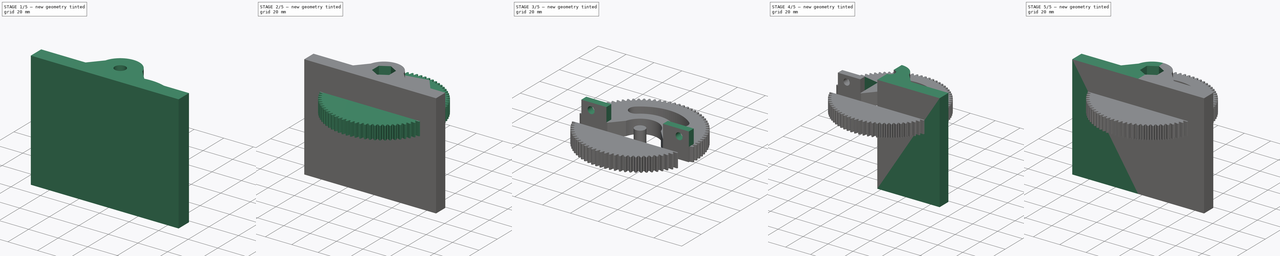
[diagram: build sequence overview — one tinted view per stage of 5, left to right]
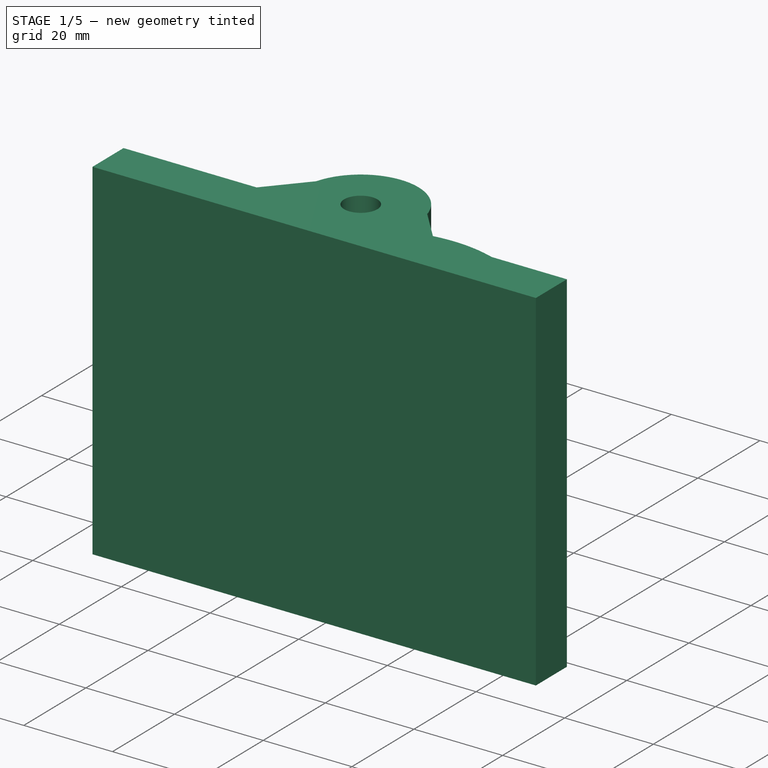
[diagram: stage 1 of 5 — iso view after this stage's code; geometry added in this stage tinted green]
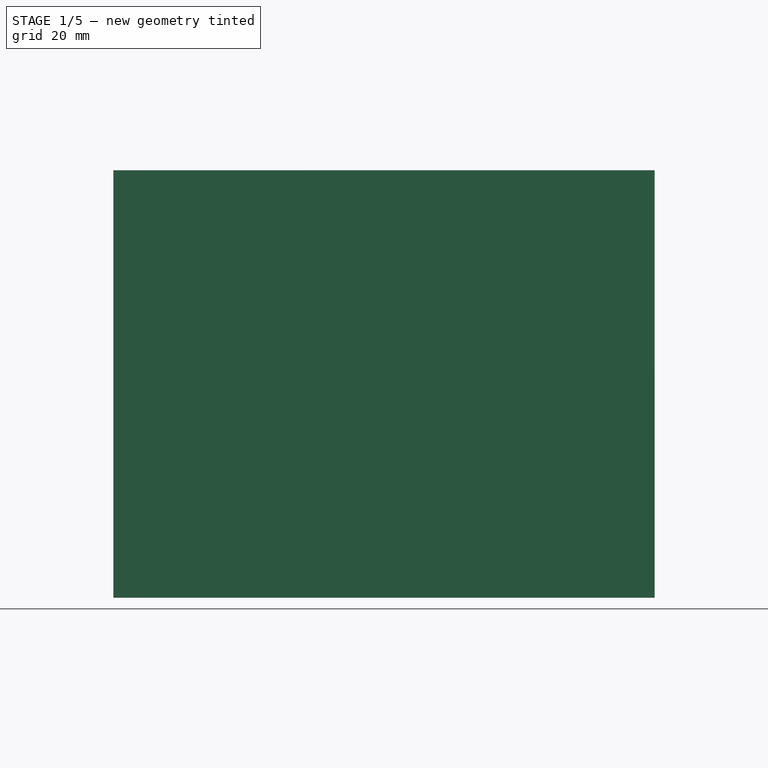
[diagram: stage 1 of 5 — front view after this stage's code; geometry added in this stage tinted green]
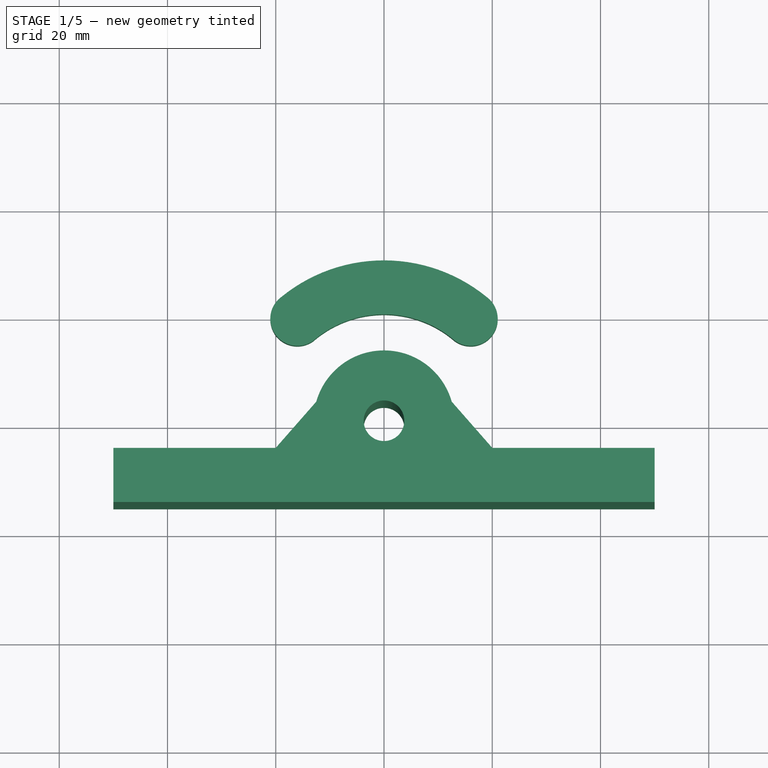
[diagram: stage 1 of 5 — top view after this stage's code; geometry added in this stage tinted green]
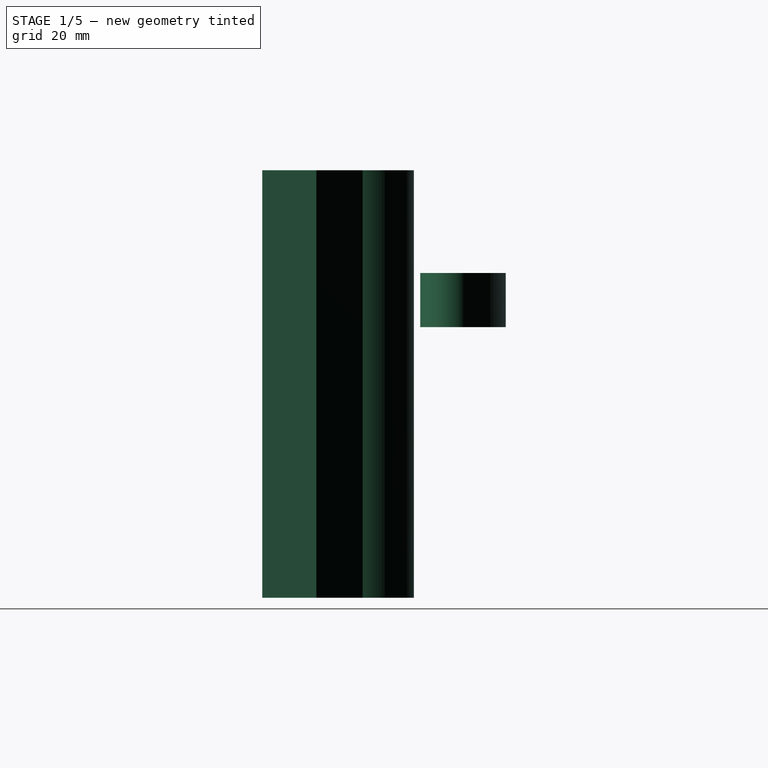
[diagram: stage 1 of 5 — right view after this stage's code; geometry added in this stage tinted green]
FCSTD DOCUMENT  (FreeCAD 0.19R24291 (Git))
Label: new_vzpera2
License: All rights reserved
LicenseURL: http://en.wikipedia.org/wiki/All_rights_reserved
objects: Sketcher::SketchObject×12, Part::Extrusion×7, Part::Mirroring×4, PartDesign::Pocket×4, App::Part×3, PartDesign::ShapeBinder×3, Part::Cut×3, Part::MultiFuse×2, PartDesign::Body×2, PartDesign::FeatureBase×2, Part::FeaturePython×1
note: 44 computed .brp shape members not serialized (recipe doc carries the construction recipe); baked Part::Feature solids carry a one-line shape summary decoded from their .brp

FEATURE [App::Part] Part002  label="Deklinacni_ozubi"
  Group = -> [involutegear]
  Origin = -> Origin004
FEATURE [Sketcher::SketchObject] Sketch004  label="Zakladni_tvar001"
  FullyConstrained = true
  MapMode = 5
  Support = -> [XY_Plane005]
  sketch-geometry (9):
    g0: Circle CenterX=0 CenterY=0 CenterZ=0 NormalX=0 NormalY=0 NormalZ=1 AngleXU=0 Radius=3.75
    g1: LineSegment StartX=-50 StartY=-15.0095 StartZ=0 EndX=0 EndY=-15.0095 EndZ=0
    g2: LineSegment StartX=-50 StartY=-5.00947 StartZ=0 EndX=-50 EndY=-15.0095 EndZ=0
    g3: LineSegment StartX=-12.51 StartY=3.53552 StartZ=0 EndX=-20 EndY=-5.00553 EndZ=0
    g4: LineSegment StartX=-20 StartY=-5.00553 StartZ=0 EndX=-50 EndY=-5.00947 EndZ=0
    g5: ArcOfCircle CenterX=0 CenterY=0 CenterZ=0 NormalX=0 NormalY=0 NormalZ=1 AngleXU=0 Radius=13 StartAngle=1.5708 EndAngle=2.86616
    g6: ArcOfCircle CenterX=0 CenterY=0 CenterZ=0 NormalX=0 NormalY=0 NormalZ=1 AngleXU=0 Radius=3.75 StartAngle=1.5708 EndAngle=4.71239
    g7: LineSegment StartX=8e-16 StartY=13 StartZ=0 EndX=8e-16 EndY=3.75 EndZ=0
    g8: LineSegment StartX=0 StartY=-3.75 StartZ=0 EndX=0 EndY=-15.0095 EndZ=0
  constraints (26):
    c: Coincident(g0,g-1)
    c: Radius(g0) = 3.75
    c: Coincident(g4,g2)
    c: Coincident(g2,g1)
    c: Horizontal(g1)
    c: Vertical(g2)
    c: Distance(g1) = 50
    c: Distance(g2) = 10
    c: Coincident(g4,g3)
    c: Coincident(g5,g0)
    c: Coincident(g5,g3)
    c: Coincident(g6,g5)
    c: PointOnObject(g6,g0)
    c: Angle(g6) = 3.14159
    c: PointOnObject(g6,g-2)
    c: Coincident(g7,g5)
    c: Coincident(g7,g6)
    c: Vertical(g7)
    c: Coincident(g8,g1)
    c: Vertical(g8)
    c: Coincident(g8,g6)
    c: Distance(g3,g3) = 11.36
    c: Distance(g1,g3) = 22.37
    c: DistanceX(g2,g3) = 30
    c: Radius(g5) = 13
    c: DistanceX(g3) = -12.51
FEATURE [Sketcher::SketchObject] Sketch005  label="DiraMatice001"
  FullyConstrained = true
  MapMode = 5
  Support = -> [XY_Plane006]
  sketch-geometry (7):
    g0: LineSegment StartX=0 StartY=-7.5 StartZ=0 EndX=6.49519 EndY=-3.75 EndZ=0
    g1: LineSegment StartX=6.49519 StartY=-3.75 StartZ=0 EndX=6.49519 EndY=3.75 EndZ=0
    g2: LineSegment StartX=6.49519 StartY=3.75 StartZ=0 EndX=-2.11111e-11 EndY=7.5 EndZ=0
    g3: LineSegment StartX=-2.11112e-11 StartY=7.5 StartZ=0 EndX=-6.49519 EndY=3.75 EndZ=0
    g4: LineSegment StartX=-6.49519 StartY=3.75 StartZ=0 EndX=-6.49519 EndY=-3.75 EndZ=0
    g5: LineSegment StartX=-6.49519 StartY=-3.75 StartZ=0 EndX=0 EndY=-7.5 EndZ=0
    g6: Circle CenterX=0 CenterY=0 CenterZ=0 NormalX=0 NormalY=0 NormalZ=1 AngleXU=0 Radius=7.5
  constraints (16):
    c: Coincident(g0,g1)
    c: Coincident(g1,g2)
    c: Coincident(g2,g3)
    c: Coincident(g3,g4)
    c: Coincident(g4,g5)
    c: Coincident(g5,g0)
    c: Equal(g0, g1-g5) x5
    c: PointOnObject(g0,g6)
    c: PointOnObject(g1,g6)
    c: PointOnObject(g2,g6)
    c: PointOnObject(g3,g6)
    c: PointOnObject(g4,g6)
    c: PointOnObject(g5,g6)
    c: Coincident(g6,g-1)
    c: PointOnObject(g5,g-2)
    c: Radius(g6) = 7.5
FEATURE [Part::Mirroring] Part__Mirroring002  label="Zakladni_tvar (Mirror #1)001"
  Base = (-25,-1.00474,0)
  Normal = (0,0,1)
  Source = -> Sketch004
FEATURE [Part::Extrusion] Extrude001  label="Extrude_pulky001"
  Base = -> Part__Mirroring002
  Dir = (0,0,1)
  DirMode = 2
  FaceMakerClass = Part::FaceMakerBullseye
  LengthFwd = 79
  LengthRev = 0
  Solid = true
  Symmetric = false
FEATURE [Part::Mirroring] Part__Mirroring003  label="Extrude (Mirror #2)001"
  Base = (0,0,0)
  Normal = (1,0,0)
  Source = -> Extrude001
FEATURE [Part::MultiFuse] Fusion001
  Shapes = -> [Part__Mirroring003,Extrude001]
FEATURE [Sketcher::SketchObject] Sketch011
  FullyConstrained = false
  MapMode = 5
  Placement = pos=(0,0,60) rot=(0,0,1;0rad)
  Support = -> [CopyCut]
  sketch-geometry (5):
    g0: ArcOfCircle CenterX=1.6e-15 CenterY=0 CenterZ=0 NormalX=0 NormalY=0 NormalZ=1 AngleXU=0 Radius=29.9718 StartAngle=0.887483 EndAngle=1.5708
    g1: ArcOfCircle CenterX=1.6e-15 CenterY=0 CenterZ=0 NormalX=0 NormalY=0 NormalZ=1 AngleXU=0 Radius=29.9718 StartAngle=1.5708 EndAngle=2.25411
    g2: ArcOfCircle CenterX=1.6e-15 CenterY=0 CenterZ=0 NormalX=0 NormalY=0 NormalZ=1 AngleXU=0 Radius=20 StartAngle=0.856833 EndAngle=2.28476
    g3: ArcOfCircle CenterX=16.0099 CenterY=19.1791 CenterZ=0 NormalX=0 NormalY=0 NormalZ=1 AngleXU=0 Radius=5 StartAngle=4.09041 EndAngle=7.23199
    g4: ArcOfCircle CenterX=-16.0099 CenterY=19.1791 CenterZ=0 NormalX=0 NormalY=0 NormalZ=1 AngleXU=0 Radius=5 StartAngle=2.19278 EndAngle=5.33437
  constraints (13):
    c: Coincident(g1,g0)
    c: PointOnObject(g0,g-2)
    c: Coincident(g2,g0)
    c: Symmetric(g2,g2,g-2)
    c: Symmetric(g0,g1,g-2)
    c: Distance(g2,g0) = 10
    c: Coincident(g1,g0)
    c: Distance(g2,g0) = 20
    c: Coincident(g0,g-1)
    c: Radius(g3) = 5
    c: Coincident(g3,g2)
    c: Coincident(g3,g0)
    c: Radius(g4) = 5
FEATURE [Part::Extrusion] Extrude007
  Base = -> Sketch011
  Dir = (0,0,1)
  DirMode = 2
  FaceMakerClass = Part::FaceMakerBullseye
  LengthFwd = -10
  LengthRev = 0
  Solid = true
  Symmetric = false
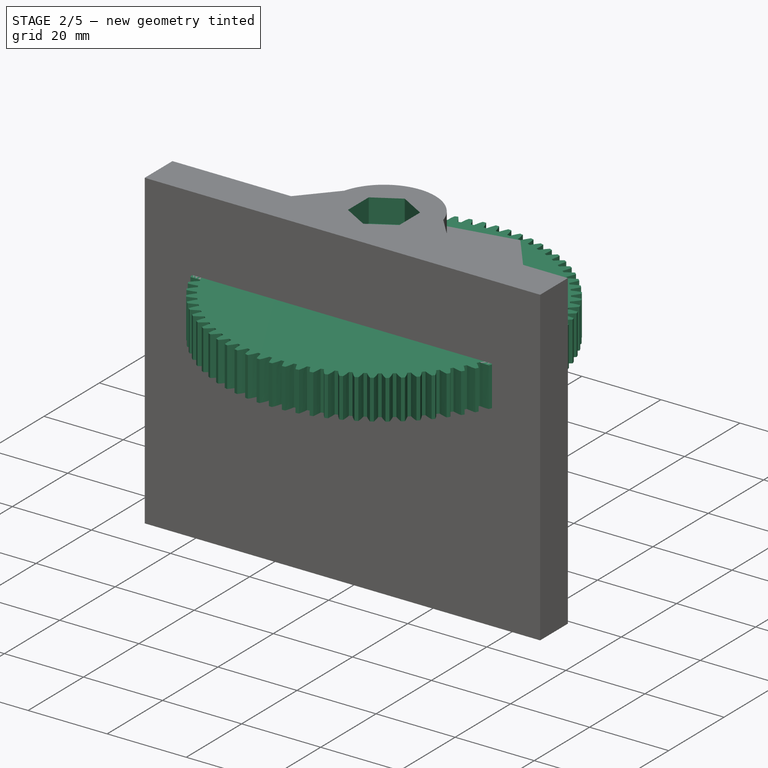
[diagram: stage 2 of 5 — iso view after this stage's code; geometry added in this stage tinted green]
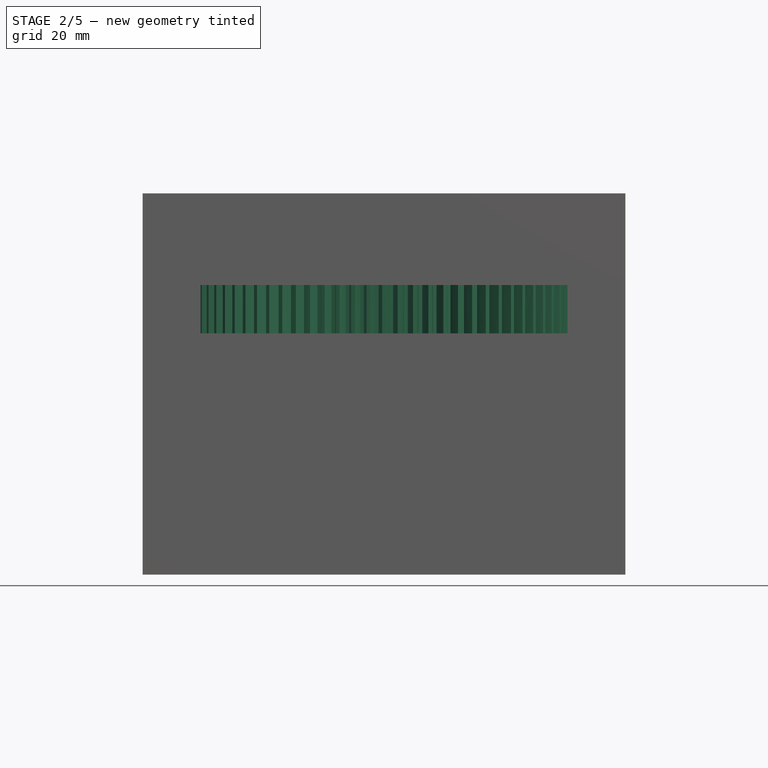
[diagram: stage 2 of 5 — front view after this stage's code; geometry added in this stage tinted green]
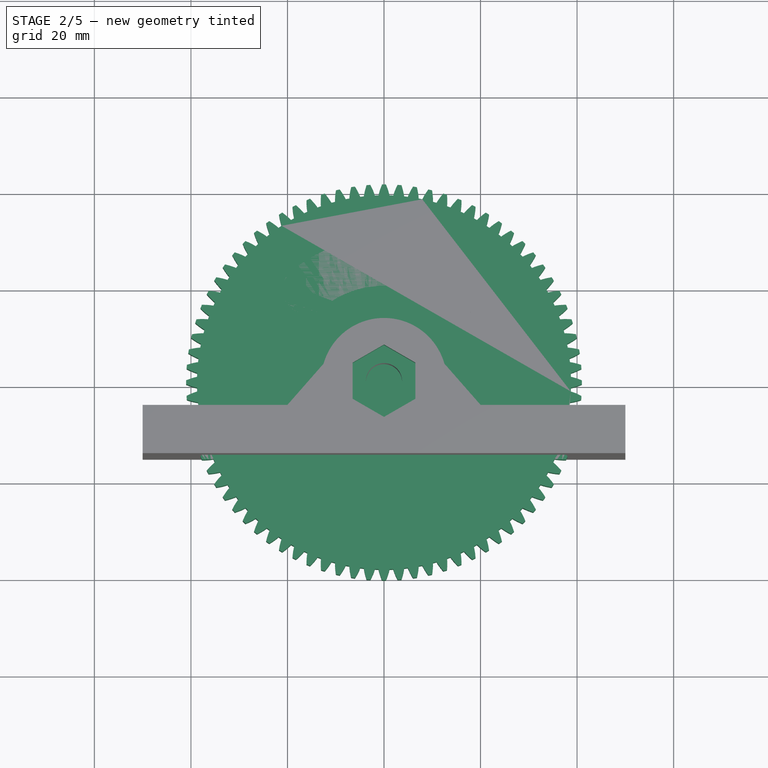
[diagram: stage 2 of 5 — top view after this stage's code; geometry added in this stage tinted green]
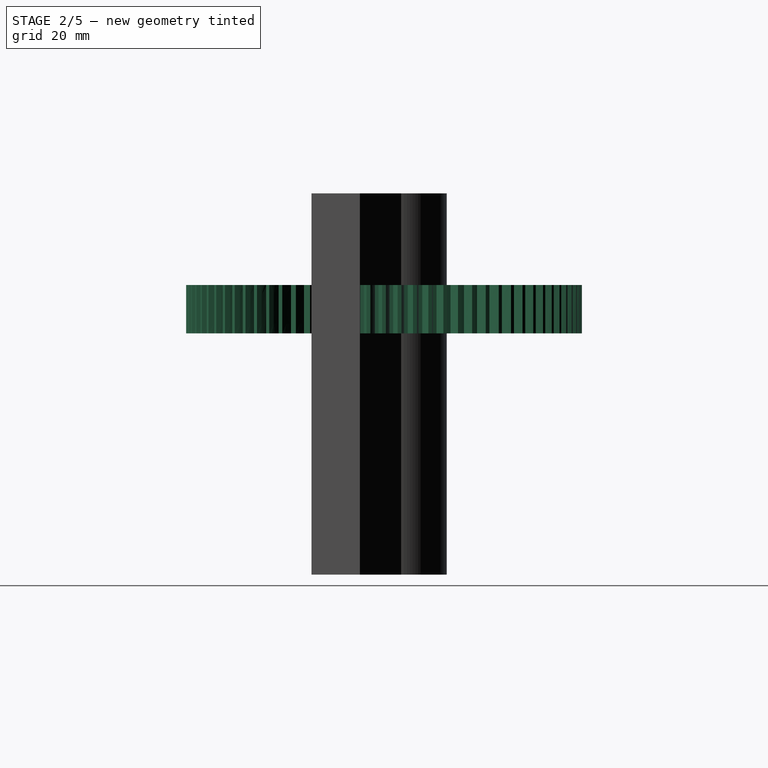
[diagram: stage 2 of 5 — right view after this stage's code; geometry added in this stage tinted green]
FEATURE [Part::FeaturePython] involutegear  # WARN: FeaturePython — macro-defined, semantics opaque (R4)
  AttacherType = Attacher::AttachEngine3D
  Placement = pos=(0,0,50) rot=(0,0,1;0rad)
  backlash = 0
  beta = 0
  clearance = 0.25
  da = 82
  df = 77.5
  double_helix = false
  dw = 80
  head = 0
  height = 10
  module = 1
  numpoints = 6
  pressure_angle = 20
  properties_from_tool = false
  reversed_backlash = false
  shift = 0
  simple = false
  teeth = 80
  transverse_pitch = 3.14159
  undercut = false
  version = 0.0.3
FEATURE [PartDesign::FeatureBase] BaseFeature001
  BaseFeature = -> Fusion001
FEATURE [PartDesign::Pocket] Pocket003
  BaseFeature = -> BaseFeature001
  Length = 6
  Length2 = 100
  Profile = -> Sketch005
  Reversed = true
  Type = 0
FEATURE [Sketcher::SketchObject] Sketch003
  FullyConstrained = true
  MapMode = 5
  Placement = pos=(0,0,79) rot=(0,0,1;0rad)
  Support = -> [Pocket003]
  sketch-geometry (7):
    g0: LineSegment StartX=0 StartY=-7.5 StartZ=0 EndX=6.49519 EndY=-3.75 EndZ=0
    g1: LineSegment StartX=6.49519 StartY=-3.75 StartZ=0 EndX=6.49519 EndY=3.75 EndZ=0
    g2: LineSegment StartX=6.49519 StartY=3.75 StartZ=0 EndX=-7.23697e-11 EndY=7.5 EndZ=0
    g3: LineSegment StartX=-7.23697e-11 StartY=7.5 StartZ=0 EndX=-6.49519 EndY=3.75 EndZ=0
    g4: LineSegment StartX=-6.49519 StartY=3.75 StartZ=0 EndX=-6.49519 EndY=-3.75 EndZ=0
    g5: LineSegment StartX=-6.49519 StartY=-3.75 StartZ=0 EndX=0 EndY=-7.5 EndZ=0
    g6: Circle CenterX=0 CenterY=0 CenterZ=0 NormalX=0 NormalY=0 NormalZ=1 AngleXU=0 Radius=7.5
  constraints (16):
    c: Coincident(g0,g1)
    c: Coincident(g1,g2)
    c: Coincident(g2,g3)
    c: Coincident(g3,g4)
    c: Coincident(g4,g5)
    c: Coincident(g5,g0)
    c: Equal(g0, g1-g5) x5
    c: PointOnObject(g0,g6)
    c: PointOnObject(g1,g6)
    c: PointOnObject(g2,g6)
    c: PointOnObject(g3,g6)
    c: PointOnObject(g4,g6)
    c: PointOnObject(g5,g6)
    c: Coincident(g6,g-1)
    c: PointOnObject(g5,g-2)
    c: Radius(g6) = 7.5
FEATURE [PartDesign::Pocket] Pocket002  label="refer_vzpera"
  BaseFeature = -> Pocket003
  Length = 6
  Length2 = 100
  Profile = -> Sketch003
  Type = 0
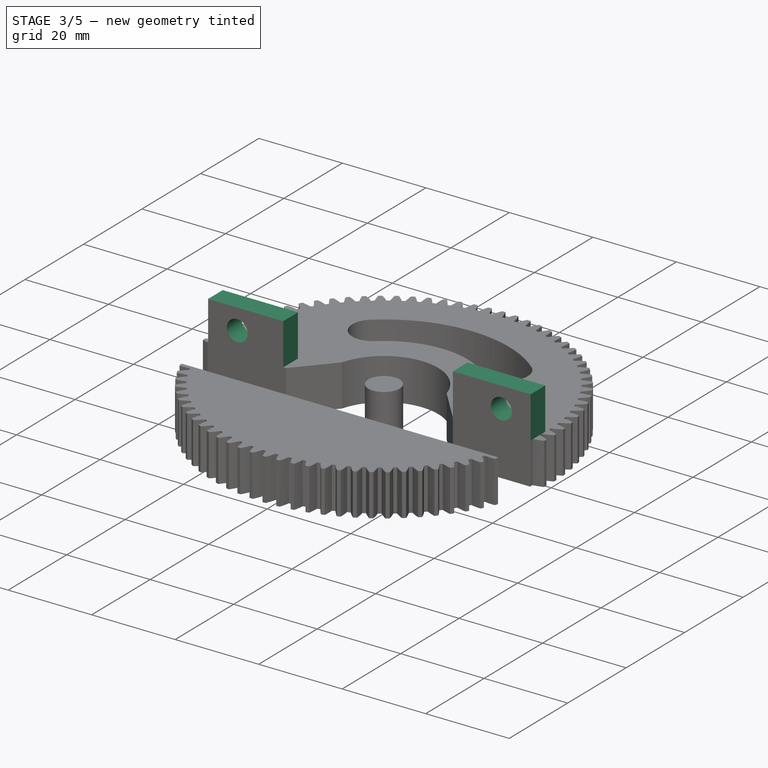
[diagram: stage 3 of 5 — iso view after this stage's code; geometry added in this stage tinted green]
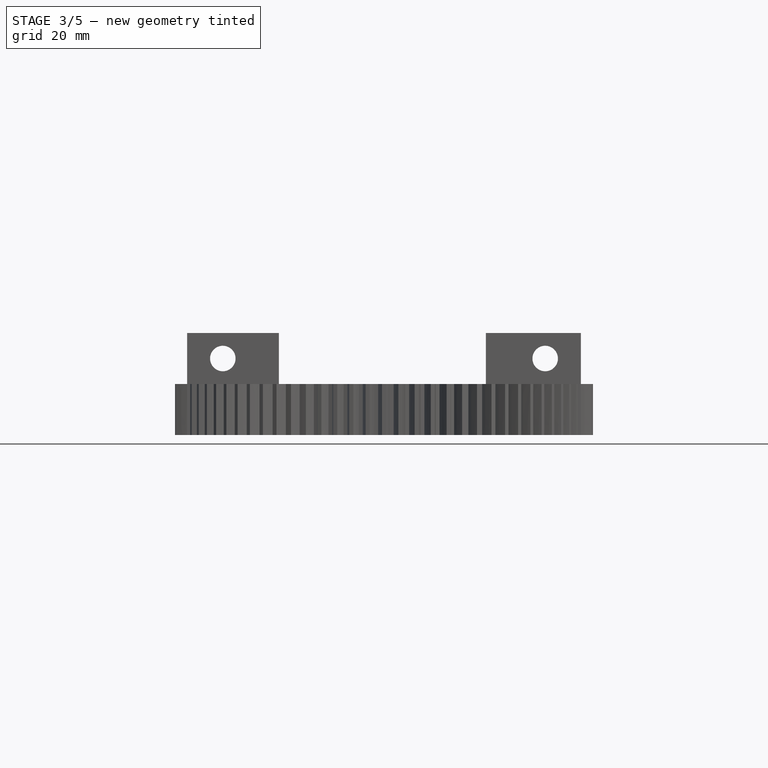
[diagram: stage 3 of 5 — front view after this stage's code; geometry added in this stage tinted green]
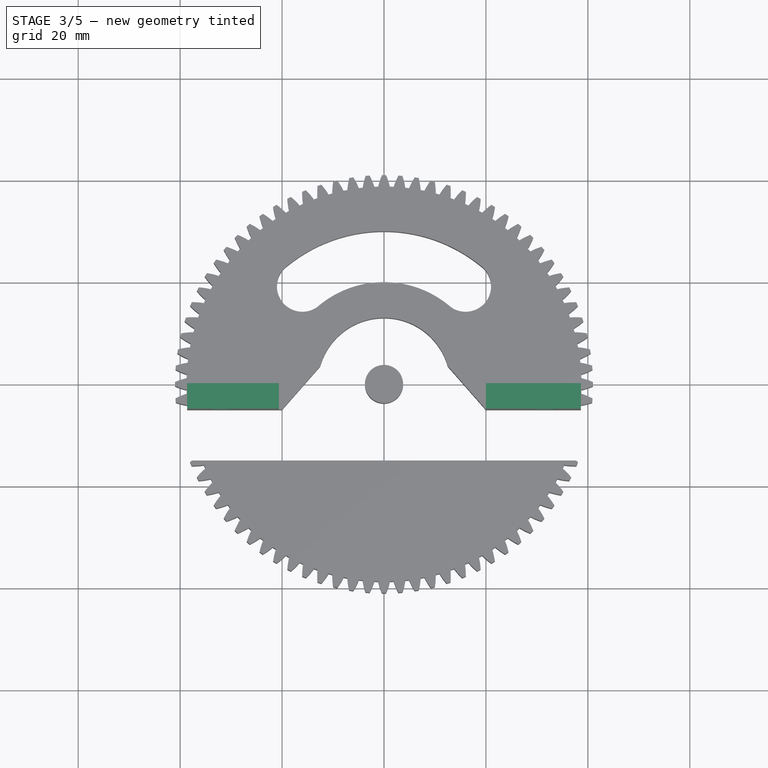
[diagram: stage 3 of 5 — top view after this stage's code; geometry added in this stage tinted green]
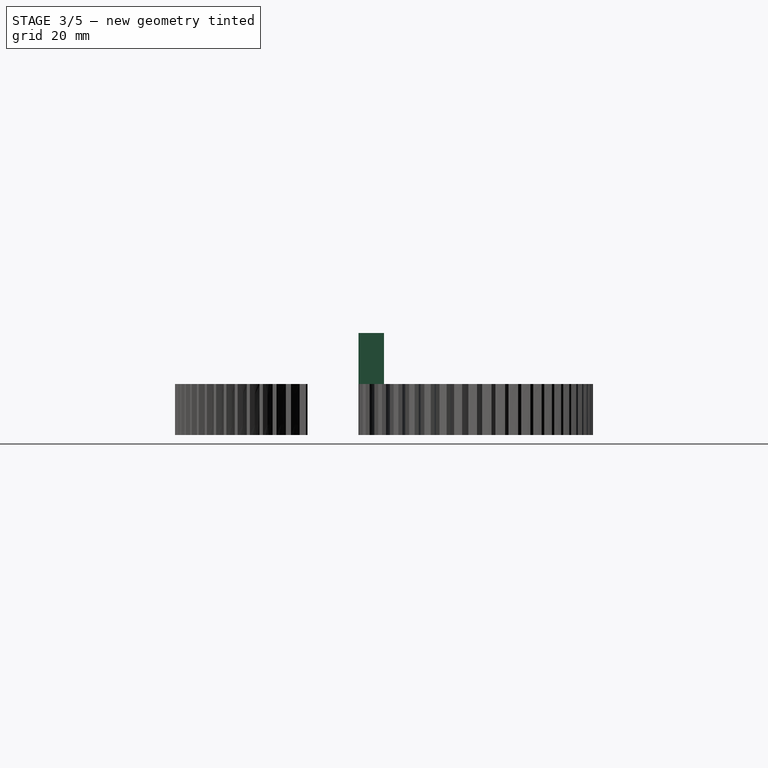
[diagram: stage 3 of 5 — right view after this stage's code; geometry added in this stage tinted green]
FEATURE [PartDesign::ShapeBinder] Copyinvolutegear
  Placement = pos=(0,0,60) rot=(0,0,1;0rad)
  TraceSupport = false
FEATURE [Sketcher::SketchObject] Sketch006
  FullyConstrained = true
  MapMode = 5
  Placement = pos=(0,0,60) rot=(0,0,1;0rad)
  Support = -> [Copyinvolutegear]
FEATURE [Part::Cut] Cut
  Base = -> Part002
  Tool = -> Pocket002
FEATURE [PartDesign::ShapeBinder] CopyCut
  TraceSupport = false
FEATURE [Sketcher::SketchObject] Sketch007
  ExternalGeometry = -> [CopyCut]
  FullyConstrained = false
  MapMode = 5
  Placement = pos=(0,0,60) rot=(0,0,1;0rad)
  Support = -> [CopyCut]
  sketch-geometry (8):
    g0: LineSegment StartX=-38.6256 StartY=-5.00798 StartZ=0 EndX=-20.6256 EndY=-5.00798 EndZ=0
    g1: LineSegment StartX=-20.6256 StartY=-5.00798 StartZ=0 EndX=-20.6256 EndY=0 EndZ=0
    g2: LineSegment StartX=-20.6256 StartY=0 StartZ=0 EndX=-38.6256 EndY=0 EndZ=0
    g3: LineSegment StartX=-38.6256 StartY=0 StartZ=0 EndX=-38.6256 EndY=-5.00798 EndZ=0
    g4: LineSegment StartX=20 StartY=-5.00553 StartZ=0 EndX=38.6256 EndY=-5.00553 EndZ=0
    g5: LineSegment StartX=38.6256 StartY=-5.00553 StartZ=0 EndX=38.6256 EndY=0 EndZ=0
    g6: LineSegment StartX=38.6256 StartY=0 StartZ=0 EndX=20 EndY=0 EndZ=0
    g7: LineSegment StartX=20 StartY=0 StartZ=0 EndX=20 EndY=-5.00553 EndZ=0
  constraints (11):
    c: Coincident(g4,g5)
    c: Coincident(g5,g6)
    c: Coincident(g6,g7)
    c: Coincident(g7,g4)
    c: Horizontal(g4)
    c: Horizontal(g6)
    c: Vertical(g5)
    c: Vertical(g7)
    c: Coincident(g4,g-4)
    c: PointOnObject(g5,g-1)
    c: Equal(g4,g-4)
FEATURE [PartDesign::Body] Body001
  BaseFeature = -> Fusion
  Group = -> [BaseFeature,Sketch001,Pocket,Sketch002,Pocket001,Copyinvolutegear,Sketch006,CopyCut,Sketch007]
  Origin = -> Origin003
  Tip = -> Pocket001
FEATURE [Part::Extrusion] Extrude002  label="Patna"
  Base = -> Sketch007
  Dir = (0,0,1)
  DirMode = 2
  FaceMakerClass = Part::FaceMakerBullseye
  LengthFwd = 10
  LengthRev = 0
  Solid = true
  Symmetric = false
FEATURE [Sketcher::SketchObject] Sketch010
  ExternalGeometry = -> [Extrude002]
  FullyConstrained = true
  MapMode = 5
  Placement = pos=(0,0,0) rot=(0,0.707107,0.707107;3.14159rad)
  Support = -> [Extrude002]
  sketch-geometry (2):
    g0: Circle CenterX=-31.6256 CenterY=65 CenterZ=0 NormalX=0 NormalY=0 NormalZ=1 AngleXU=0 Radius=2.5
    g1: Circle CenterX=31.6256 CenterY=65 CenterZ=0 NormalX=0 NormalY=0 NormalZ=1 AngleXU=0 Radius=2.5
  constraints (6):
    c: Radius(g0) = 2.5
    c: DistanceX(g-3,g0) = 7
    c: DistanceY(g0,g-3) = 5
    c: Radius(g1) = 2.5
    c: DistanceX(g1,g-4) = 7
    c: DistanceY(g1,g-4) = 5
FEATURE [Part::Extrusion] Extrude006
  Base = -> Sketch010
  Dir = (0,1,-2e-16)
  DirMode = 2
  FaceMakerClass = Part::FaceMakerBullseye
  LengthFwd = 10
  LengthRev = 0
  Reversed = true
  Solid = true
  Symmetric = false
FEATURE [Part::Cut] Cut001
  Base = -> Extrude002
  Tool = -> Extrude006
FEATURE [Part::Cut] Cut002
  Base = -> Cut
  Tool = -> Extrude007
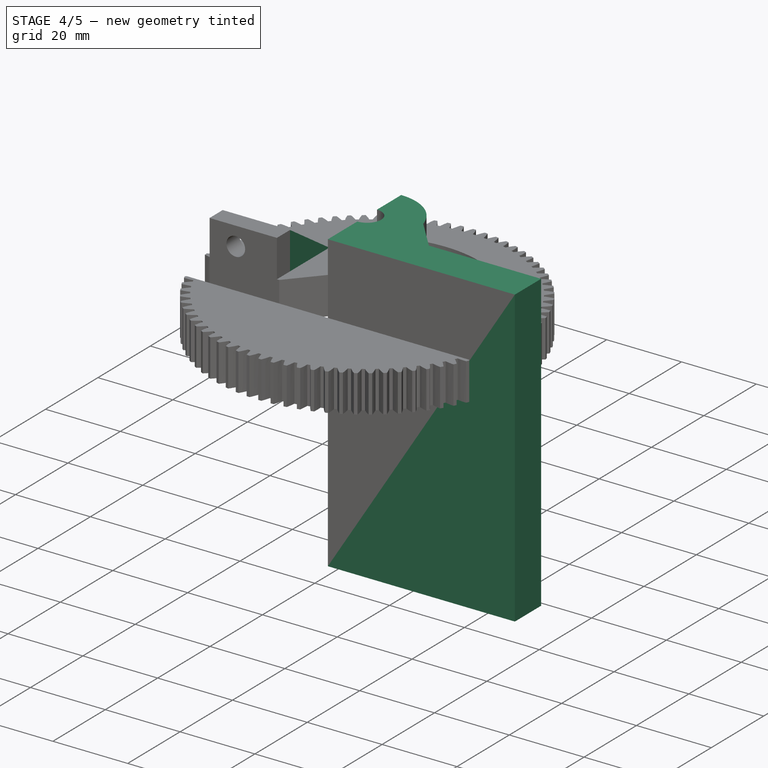
[diagram: stage 4 of 5 — iso view after this stage's code; geometry added in this stage tinted green]
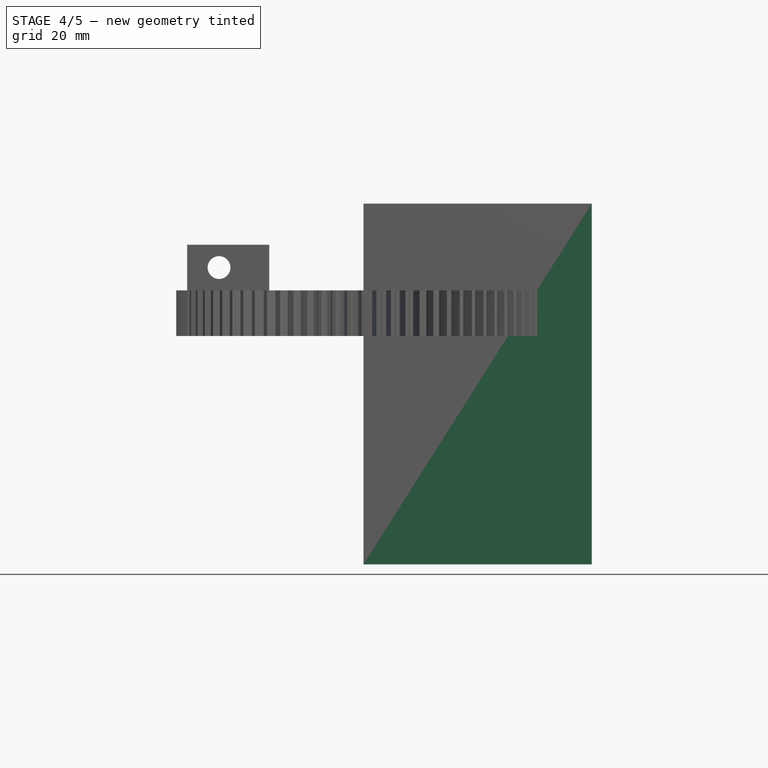
[diagram: stage 4 of 5 — front view after this stage's code; geometry added in this stage tinted green]
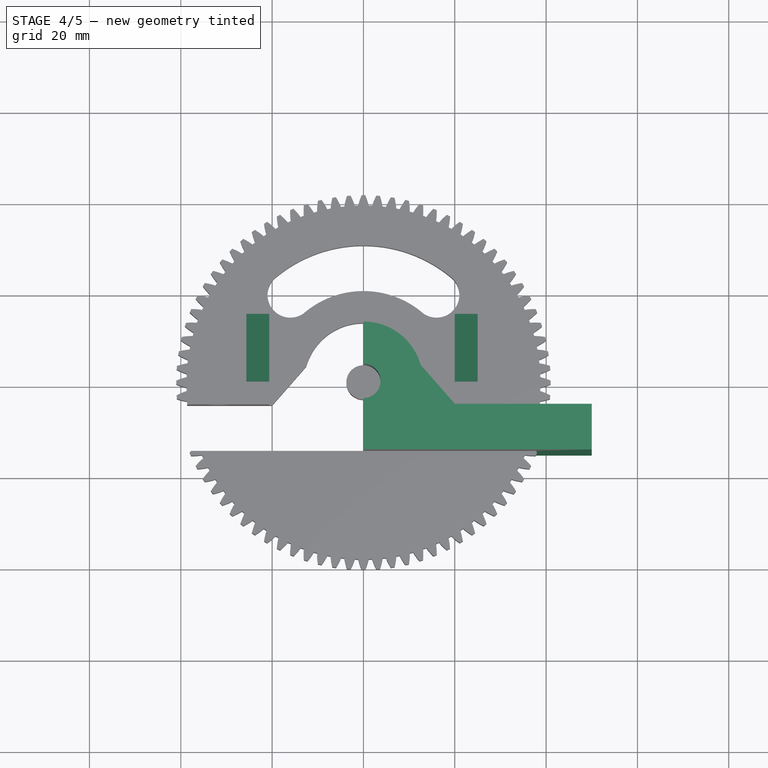
[diagram: stage 4 of 5 — top view after this stage's code; geometry added in this stage tinted green]
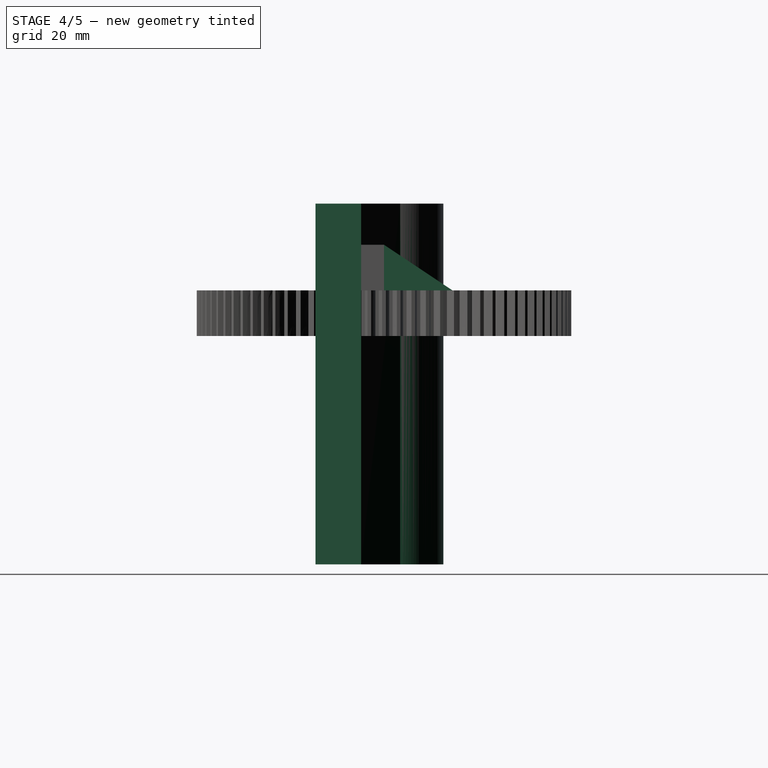
[diagram: stage 4 of 5 — right view after this stage's code; geometry added in this stage tinted green]
FEATURE [App::Part] Part
  Origin = -> Origin
FEATURE [Sketcher::SketchObject] Sketch  label="Zakladni_tvar"
  FullyConstrained = true
  MapMode = 5
  Support = -> [XY_Plane002]
  sketch-geometry (9):
    g0: Circle CenterX=0 CenterY=0 CenterZ=0 NormalX=0 NormalY=0 NormalZ=1 AngleXU=0 Radius=3.75
    g1: LineSegment StartX=-50 StartY=-15.0095 StartZ=0 EndX=0 EndY=-15.0095 EndZ=0
    g2: LineSegment StartX=-50 StartY=-5.00947 StartZ=0 EndX=-50 EndY=-15.0095 EndZ=0
    g3: LineSegment StartX=-12.51 StartY=3.53552 StartZ=0 EndX=-20 EndY=-5.00553 EndZ=0
    g4: LineSegment StartX=-20 StartY=-5.00553 StartZ=0 EndX=-50 EndY=-5.00947 EndZ=0
    g5: ArcOfCircle CenterX=0 CenterY=0 CenterZ=0 NormalX=0 NormalY=0 NormalZ=1 AngleXU=0 Radius=13 StartAngle=1.5708 EndAngle=2.86616
    g6: ArcOfCircle CenterX=0 CenterY=0 CenterZ=0 NormalX=0 NormalY=0 NormalZ=1 AngleXU=0 Radius=3.75 StartAngle=1.5708 EndAngle=4.71239
    g7: LineSegment StartX=8e-16 StartY=13 StartZ=0 EndX=8e-16 EndY=3.75 EndZ=0
    g8: LineSegment StartX=0 StartY=-3.75 StartZ=0 EndX=0 EndY=-15.0095 EndZ=0
  constraints (26):
    c: Coincident(g0,g-1)
    c: Radius(g0) = 3.75
    c: Coincident(g4,g2)
    c: Coincident(g2,g1)
    c: Horizontal(g1)
    c: Vertical(g2)
    c: Distance(g1) = 50
    c: Distance(g2) = 10
    c: Coincident(g4,g3)
    c: Coincident(g5,g0)
    c: Coincident(g5,g3)
    c: Coincident(g6,g5)
    c: PointOnObject(g6,g0)
    c: Angle(g6) = 3.14159
    c: PointOnObject(g6,g-2)
    c: Coincident(g7,g5)
    c: Coincident(g7,g6)
    c: Vertical(g7)
    c: Coincident(g8,g1)
    c: Vertical(g8)
    c: Coincident(g8,g6)
    c: Distance(g3,g3) = 11.36
    c: Distance(g1,g3) = 22.37
    c: DistanceX(g2,g3) = 30
    c: Radius(g5) = 13
    c: DistanceX(g3) = -12.51
FEATURE [App::Part] Part001  label="Pokracovani_pulky"
  Group = -> [Sketch]
  Origin = -> Origin002
FEATURE [Part::Mirroring] Part__Mirroring  label="Zakladni_tvar (Mirror #1)"
  Base = (-25,-1.00474,0)
  Normal = (0,0,1)
  Source = -> Sketch
FEATURE [Part::Extrusion] Extrude  label="Extrude_pulky"
  Base = -> Part__Mirroring
  Dir = (0,0,1)
  DirMode = 2
  FaceMakerClass = Part::FaceMakerBullseye
  LengthFwd = 79
  LengthRev = 0
  Solid = true
  Symmetric = false
FEATURE [Part::Mirroring] Part__Mirroring001  label="Extrude (Mirror #2)"
  Base = (0,0,0)
  Normal = (1,0,0)
  Source = -> Extrude
FEATURE [Sketcher::SketchObject] Sketch008
  ExternalGeometry = -> [Extrude002]
  FullyConstrained = true
  MapMode = 5
  Placement = pos=(20,0,0) rot=(0.57735,-0.57735,-0.57735;2.0944rad)
  Support = -> [Extrude002]
  sketch-geometry (3):
    g0: LineSegment StartX=0 StartY=70 StartZ=0 EndX=0 EndY=60 EndZ=0
    g1: LineSegment StartX=0 StartY=60 StartZ=0 EndX=-15 EndY=60 EndZ=0
    g2: LineSegment StartX=0 StartY=70 StartZ=0 EndX=-15 EndY=60 EndZ=0
  constraints (7):
    c: Coincident(g0,g1)
    c: Horizontal(g1)
    c: Coincident(g0,g-3)
    c: Coincident(g2,g0)
    c: Coincident(g2,g1)
    c: DistanceX(g1,g1) = 15
    c: Coincident(g0,g-3)
FEATURE [Part::Extrusion] Extrude003  label="Podpera001"
  Base = -> Sketch008
  Dir = (-1,0,0)
  DirMode = 2
  FaceMakerClass = Part::FaceMakerBullseye
  LengthFwd = -5
  LengthRev = 0
  Solid = true
  Symmetric = false
FEATURE [Sketcher::SketchObject] Sketch009
  ExternalGeometry = -> [Extrude002]
  FullyConstrained = true
  MapMode = 5
  Placement = pos=(-20.6256,0,0) rot=(0.57735,0.57735,0.57735;2.0944rad)
  Support = -> [Extrude002]
  sketch-geometry (3):
    g0: LineSegment StartX=15 StartY=60 StartZ=0 EndX=0 EndY=60 EndZ=0
    g1: LineSegment StartX=0 StartY=60 StartZ=0 EndX=0 EndY=70 EndZ=0
    g2: LineSegment StartX=15 StartY=60 StartZ=0 EndX=0 EndY=70 EndZ=0
  constraints (7):
    c: Coincident(g0,g1)
    c: Horizontal(g0)
    c: Coincident(g-3,g0)
    c: DistanceX(g0,g0) = 15
    c: Coincident(g2,g0)
    c: Coincident(g2,g-3)
    c: Coincident(g1,g2)
FEATURE [Part::Extrusion] Extrude005  label="Podpera"
  Base = -> Sketch009
  Dir = (1,0,0)
  DirMode = 2
  FaceMakerClass = Part::FaceMakerBullseye
  LengthFwd = 5
  LengthRev = 0
  Reversed = true
  Solid = true
  Symmetric = false
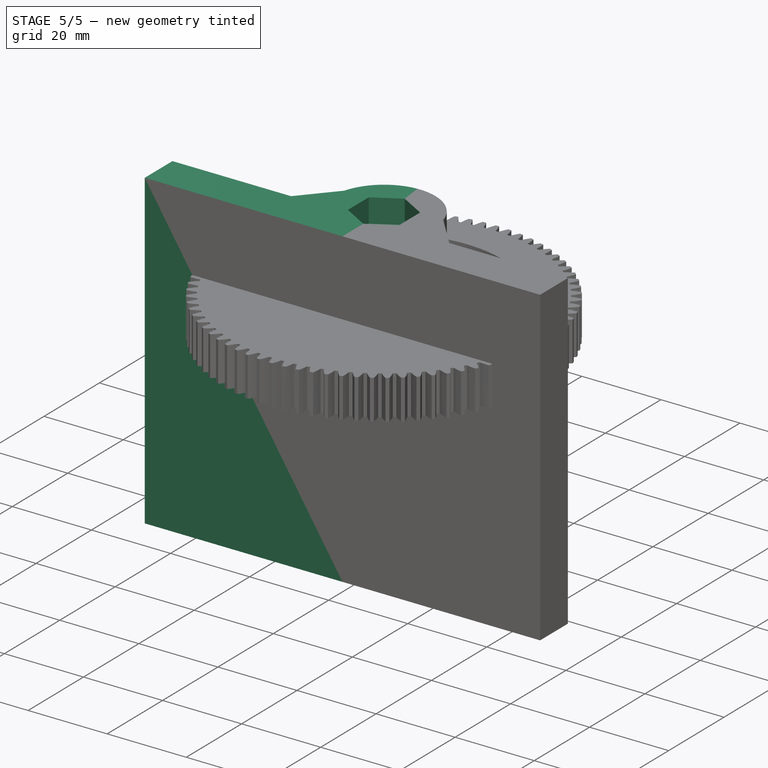
[diagram: stage 5 of 5 — iso view after this stage's code; geometry added in this stage tinted green]
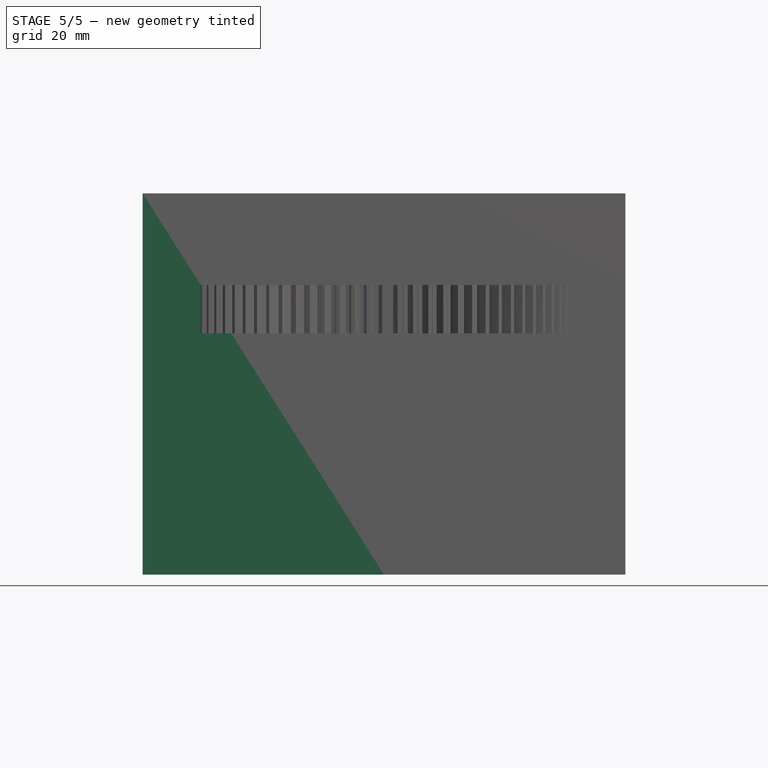
[diagram: stage 5 of 5 — front view after this stage's code; geometry added in this stage tinted green]
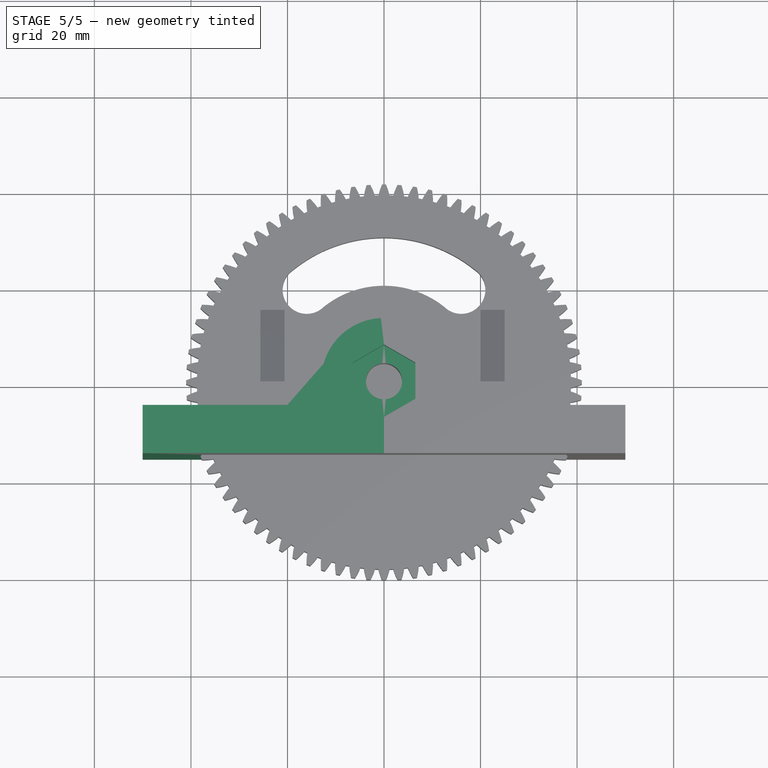
[diagram: stage 5 of 5 — top view after this stage's code; geometry added in this stage tinted green]
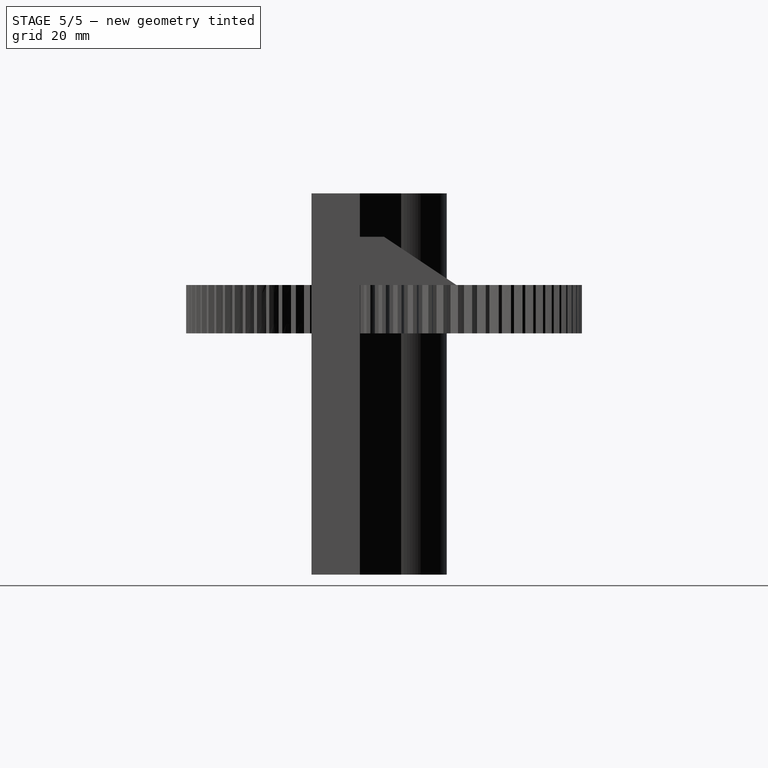
[diagram: stage 5 of 5 — right view after this stage's code; geometry added in this stage tinted green]
FEATURE [Part::MultiFuse] Fusion
  Shapes = -> [Part__Mirroring001,Extrude]
FEATURE [PartDesign::ShapeBinder] CopyFusion
  TraceSupport = false
FEATURE [PartDesign::Body] Body  label="Pulka"
  Group = -> [CopyFusion]
  Origin = -> Origin001
FEATURE [PartDesign::FeatureBase] BaseFeature
  BaseFeature = -> Fusion
FEATURE [Sketcher::SketchObject] Sketch001  label="DiraMatice"
  FullyConstrained = true
  MapMode = 5
  Support = -> [XY_Plane003]
  sketch-geometry (7):
    g0: LineSegment StartX=0 StartY=-7.5 StartZ=0 EndX=6.49519 EndY=-3.75 EndZ=0
    g1: LineSegment StartX=6.49519 StartY=-3.75 StartZ=0 EndX=6.49519 EndY=3.75 EndZ=0
    g2: LineSegment StartX=6.49519 StartY=3.75 StartZ=0 EndX=-2.11111e-11 EndY=7.5 EndZ=0
    g3: LineSegment StartX=-2.11112e-11 StartY=7.5 StartZ=0 EndX=-6.49519 EndY=3.75 EndZ=0
    g4: LineSegment StartX=-6.49519 StartY=3.75 StartZ=0 EndX=-6.49519 EndY=-3.75 EndZ=0
    g5: LineSegment StartX=-6.49519 StartY=-3.75 StartZ=0 EndX=0 EndY=-7.5 EndZ=0
    g6: Circle CenterX=0 CenterY=0 CenterZ=0 NormalX=0 NormalY=0 NormalZ=1 AngleXU=0 Radius=7.5
  constraints (16):
    c: Coincident(g0,g1)
    c: Coincident(g1,g2)
    c: Coincident(g2,g3)
    c: Coincident(g3,g4)
    c: Coincident(g4,g5)
    c: Coincident(g5,g0)
    c: Equal(g0, g1-g5) x5
    c: PointOnObject(g0,g6)
    c: PointOnObject(g1,g6)
    c: PointOnObject(g2,g6)
    c: PointOnObject(g3,g6)
    c: PointOnObject(g4,g6)
    c: PointOnObject(g5,g6)
    c: Coincident(g6,g-1)
    c: PointOnObject(g5,g-2)
    c: Radius(g6) = 7.5
FEATURE [PartDesign::Pocket] Pocket
  BaseFeature = -> BaseFeature
  Length = 6
  Length2 = 100
  Profile = -> Sketch001
  Reversed = true
  Type = 0
FEATURE [Sketcher::SketchObject] Sketch002
  FullyConstrained = true
  MapMode = 5
  Placement = pos=(0,0,79) rot=(0,0,1;0rad)
  Support = -> [Pocket]
  sketch-geometry (7):
    g0: LineSegment StartX=0 StartY=-7.5 StartZ=0 EndX=6.49519 EndY=-3.75 EndZ=0
    g1: LineSegment StartX=6.49519 StartY=-3.75 StartZ=0 EndX=6.49519 EndY=3.75 EndZ=0
    g2: LineSegment StartX=6.49519 StartY=3.75 StartZ=0 EndX=-7.23697e-11 EndY=7.5 EndZ=0
    g3: LineSegment StartX=-7.23697e-11 StartY=7.5 StartZ=0 EndX=-6.49519 EndY=3.75 EndZ=0
    g4: LineSegment StartX=-6.49519 StartY=3.75 StartZ=0 EndX=-6.49519 EndY=-3.75 EndZ=0
    g5: LineSegment StartX=-6.49519 StartY=-3.75 StartZ=0 EndX=0 EndY=-7.5 EndZ=0
    g6: Circle CenterX=0 CenterY=0 CenterZ=0 NormalX=0 NormalY=0 NormalZ=1 AngleXU=0 Radius=7.5
  constraints (16):
    c: Coincident(g0,g1)
    c: Coincident(g1,g2)
    c: Coincident(g2,g3)
    c: Coincident(g3,g4)
    c: Coincident(g4,g5)
    c: Coincident(g5,g0)
    c: Equal(g0, g1-g5) x5
    c: PointOnObject(g0,g6)
    c: PointOnObject(g1,g6)
    c: PointOnObject(g2,g6)
    c: PointOnObject(g3,g6)
    c: PointOnObject(g4,g6)
    c: PointOnObject(g5,g6)
    c: Coincident(g6,g-1)
    c: PointOnObject(g5,g-2)
    c: Radius(g6) = 7.5
FEATURE [PartDesign::Pocket] Pocket001
  BaseFeature = -> Pocket
  Length = 6
  Length2 = 100
  Profile = -> Sketch002
  Type = 0
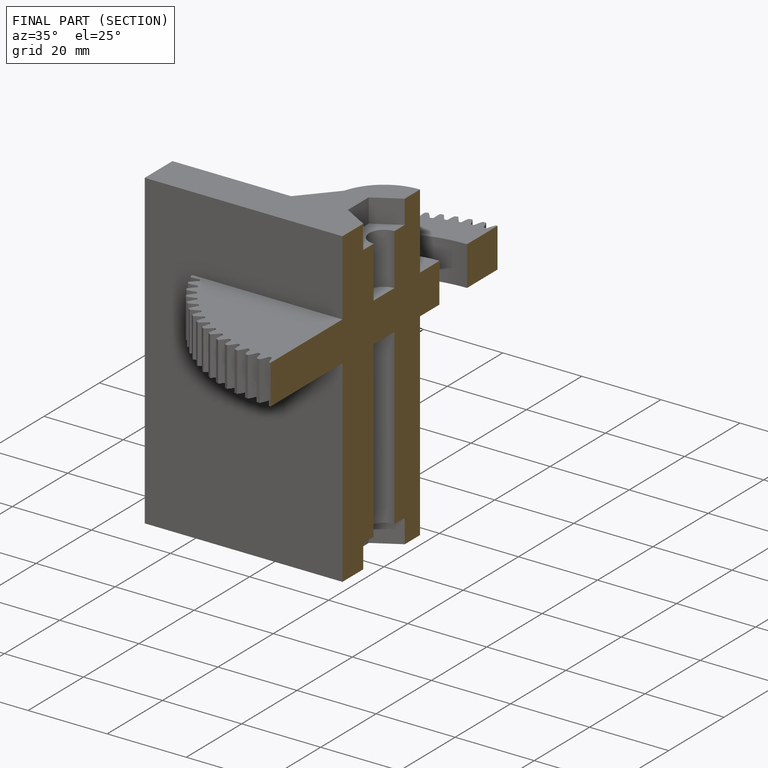
[diagram: finished part — half-section view (interior)]
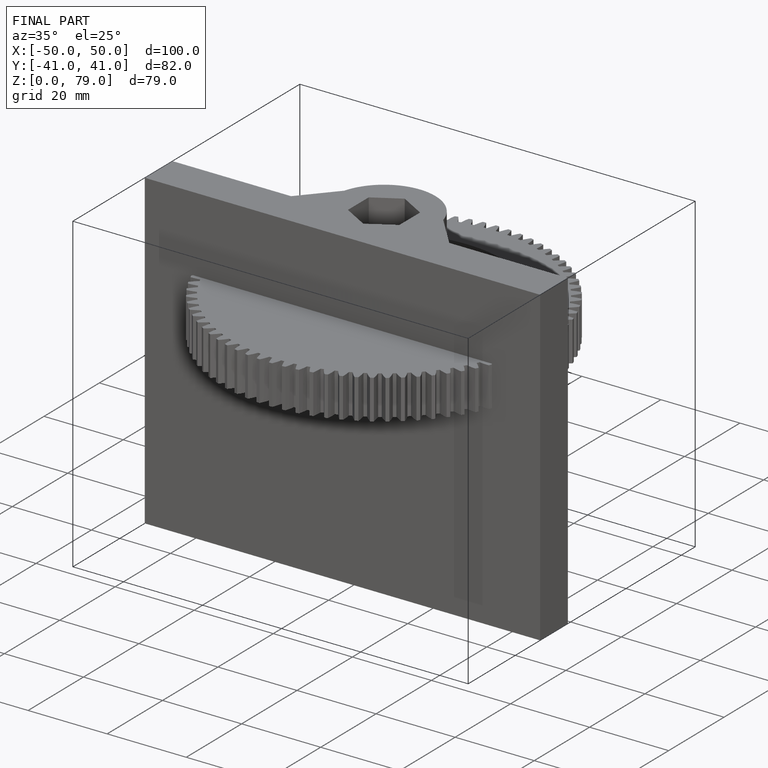
[diagram: finished part — iso view with bounding-box wireframe]
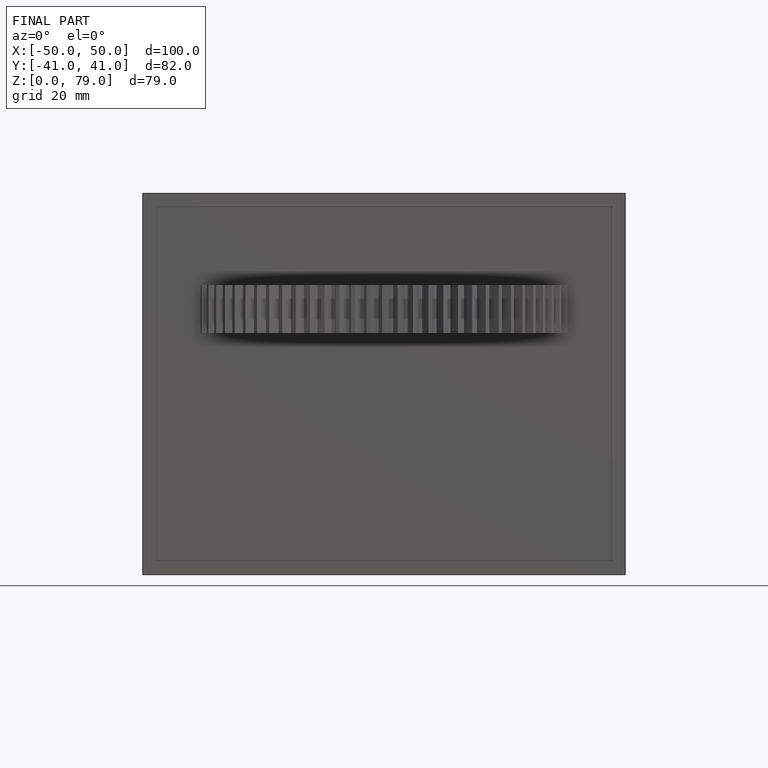
[diagram: finished part — front view with bounding-box wireframe]
